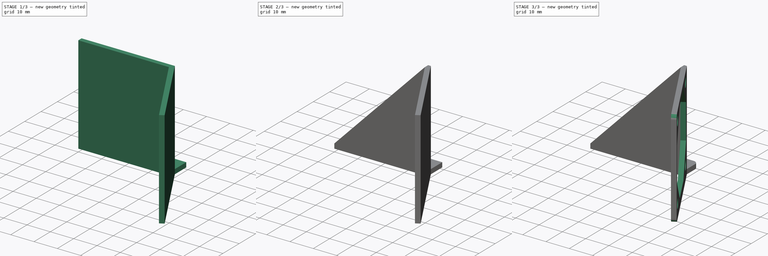
[diagram: build sequence overview — one tinted view per stage of 3, left to right]
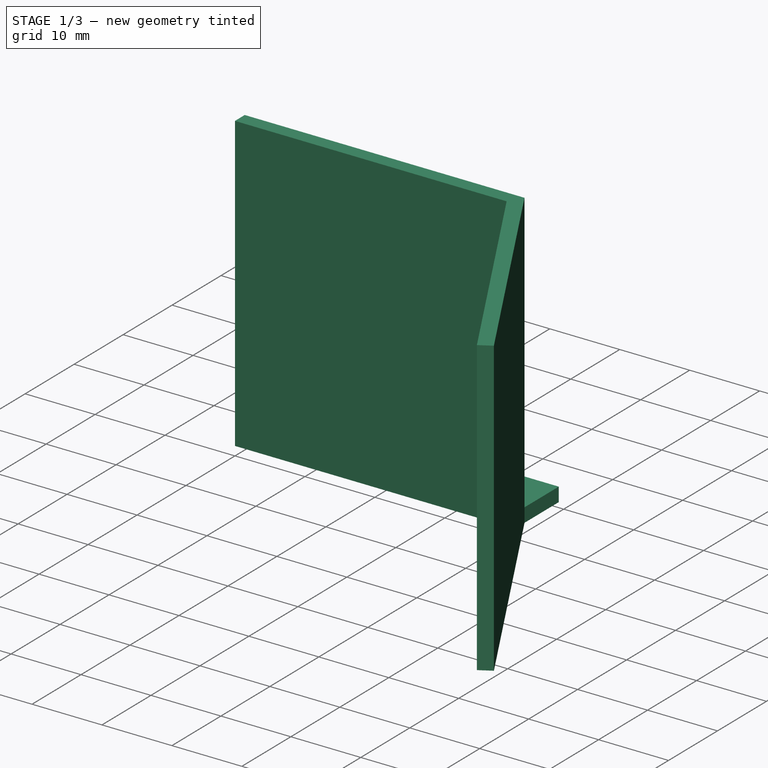
[diagram: stage 1 of 3 — iso view after this stage's code; geometry added in this stage tinted green]
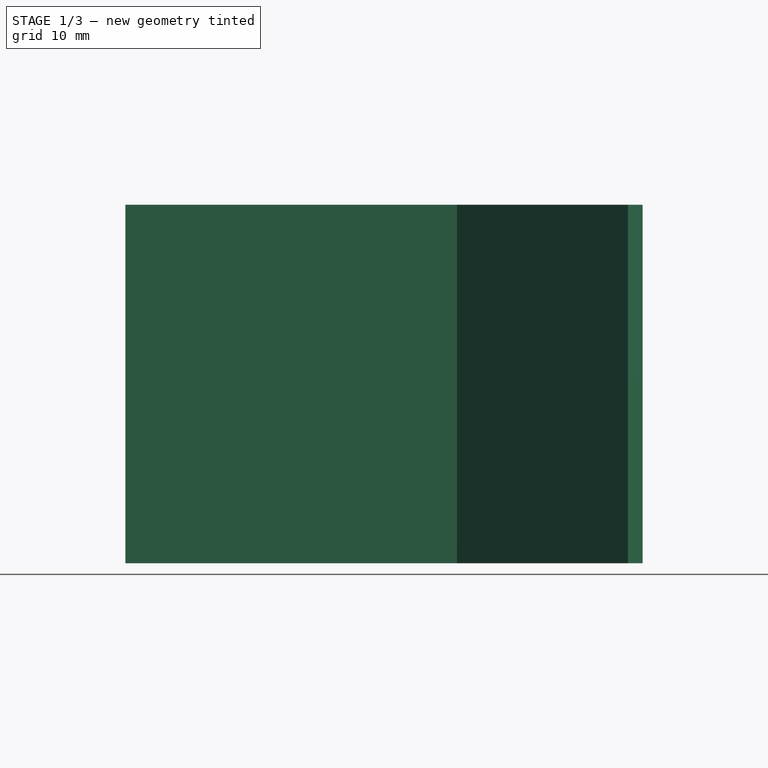
[diagram: stage 1 of 3 — front view after this stage's code; geometry added in this stage tinted green]
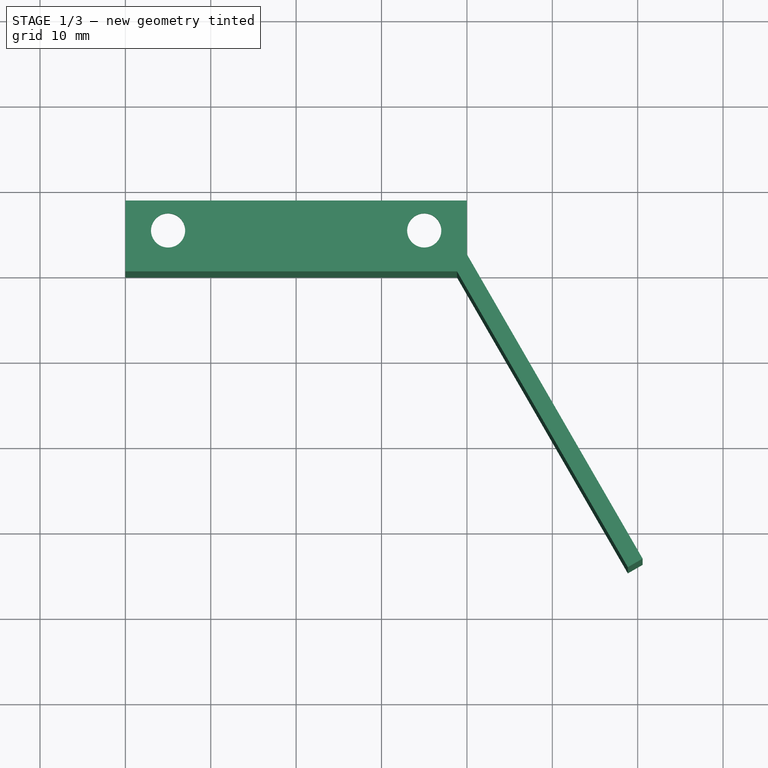
[diagram: stage 1 of 3 — top view after this stage's code; geometry added in this stage tinted green]
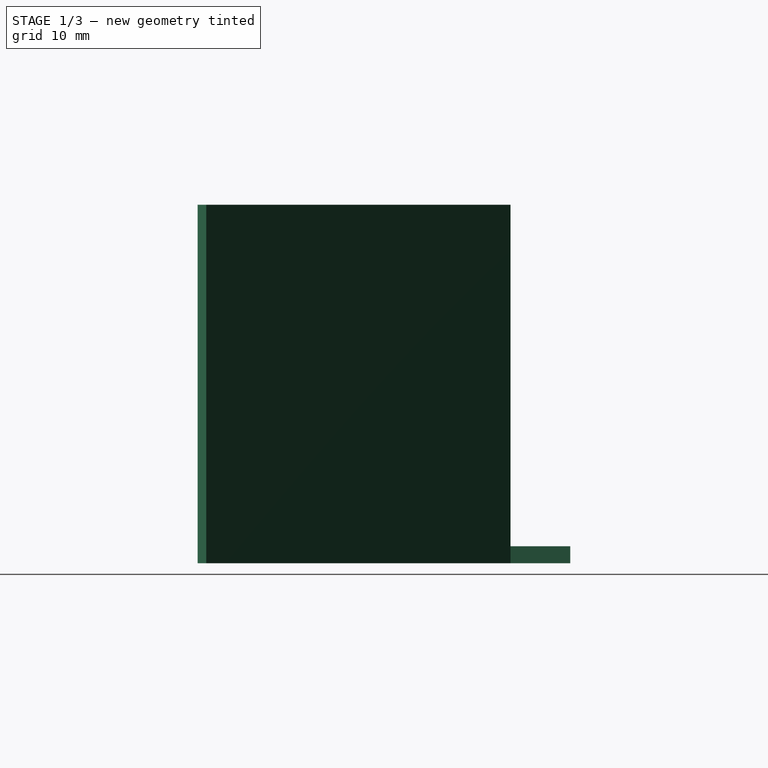
[diagram: stage 1 of 3 — right view after this stage's code; geometry added in this stage tinted green]
FCSTD DOCUMENT  (FreeCAD 0.18R14555 (Git shallow))
Label: fan-mount
License: All rights reserved
LicenseURL: http://en.wikipedia.org/wiki/All_rights_reserved
objects: Sketcher::SketchObject×4, PartDesign::Pocket×3, PartDesign::Pad×1, PartDesign::Fillet×1, PartDesign::Body×1
note: 14 computed .brp shape members not serialized (recipe doc carries the construction recipe); baked Part::Feature solids carry a one-line shape summary decoded from their .brp

FEATURE [Sketcher::SketchObject] Sketch
  MapMode = 5
  Support = -> [XY_Plane]
  sketch-geometry (14):
    g0: LineSegment StartX=0 StartY=0 StartZ=0 EndX=38.8453 EndY=0 EndZ=0
    g1: LineSegment StartX=40 StartY=9 StartZ=0 EndX=0 EndY=9 EndZ=0
    g2: LineSegment StartX=0 StartY=9 StartZ=0 EndX=0 EndY=0 EndZ=0
    g3: Circle CenterX=5 CenterY=5.5 CenterZ=0 NormalX=0 NormalY=0 NormalZ=1 AngleXU=0 Radius=2
    g4: Circle CenterX=35 CenterY=5.5 CenterZ=0 NormalX=0 NormalY=0 NormalZ=1 AngleXU=0 Radius=2
    g5: LineSegment [constr] StartX=5 StartY=5.5 StartZ=0 EndX=35 EndY=5.5 EndZ=0
    g6: LineSegment [constr] StartX=5 StartY=5.5 StartZ=0 EndX=0 EndY=9 EndZ=0
    g7: LineSegment [constr] StartX=35 StartY=5.5 StartZ=0 EndX=40 EndY=9 EndZ=0
    g8: LineSegment [constr] StartX=0 StartY=2 StartZ=0 EndX=40 EndY=2 EndZ=0
    g9: LineSegment [constr] StartX=0 StartY=2 StartZ=0 EndX=5 EndY=5.5 EndZ=0
    g10: LineSegment StartX=40 StartY=9 StartZ=0 EndX=40 EndY=2 EndZ=0
    g11: LineSegment StartX=40 StartY=2 StartZ=0 EndX=60.5774 EndY=-33.641 EndZ=0
    g12: LineSegment StartX=60.5774 StartY=-33.641 StartZ=0 EndX=58.8453 EndY=-34.641 EndZ=0
    g13: LineSegment StartX=58.8453 StartY=-34.641 StartZ=0 EndX=38.8453 EndY=0 EndZ=0
  constraints (37):
    c: Coincident(g1,g2)
    c: Coincident(g2,g0)
    c: Horizontal(g0)
    c: Horizontal(g1)
    c: Vertical(g2)
    c: Coincident(g0,g-1)
    c: DistanceY(g2,g2) = 9
    c: Coincident(g5,g3)
    c: Coincident(g5,g4)
    c: Horizontal(g5)
    c: Coincident(g6,g3)
    c: Coincident(g6,g1)
    c: Coincident(g7,g4)
    c: Equal(g6,g7)
    c: DistanceX(g5,g5) = 30
    c: DistanceX(g1,g1) = 40
    c: Horizontal(g8)
    c: PointOnObject(g8,g2)
    c: DistanceY(g0,g8) = 2
    c: Radius(g3) = 2
    c: Equal(g4,g3)
    c: Coincident(g9,g8)
    c: Coincident(g9,g3)
    c: Equal(g9,g6)
    c: Coincident(g10,g1)
    c: Coincident(g10,g8)
    c: Vertical(g10)
    c: Coincident(g10,g11)
    c: Coincident(g11,g12)
    c: Coincident(g12,g13)
    c: Coincident(g13,g0)
    c: Perpendicular(g13,g12)
    c: Parallel(g11,g13)
    c: Distance(g12) = 2
    c: Angle(g0,g13) = 2.0944
    c: Distance(g13) = 40
    c: Coincident(g7,g1)
FEATURE [PartDesign::Pad] Pad
  Length = 42
  Length2 = 100
  Profile = -> Sketch
  Type = 0
FEATURE [Sketcher::SketchObject] Sketch001
  ExternalGeometry = -> [Pad]
  MapMode = 5
  Placement = pos=(0,0,42) rot=(0,0,1;0rad)
  Support = -> [Pad]
  sketch-geometry (4):
    g0: LineSegment StartX=0 StartY=9 StartZ=0 EndX=40 EndY=9 EndZ=0
    g1: LineSegment StartX=40 StartY=9 StartZ=0 EndX=40 EndY=2 EndZ=0
    g2: LineSegment StartX=40 StartY=2 StartZ=0 EndX=0 EndY=2 EndZ=0
    g3: LineSegment StartX=0 StartY=2 StartZ=0 EndX=0 EndY=9 EndZ=0
  constraints (10):
    c: Coincident(g0,g1)
    c: Coincident(g1,g2)
    c: Coincident(g2,g3)
    c: Coincident(g3,g0)
    c: Horizontal(g2)
    c: Vertical(g1)
    c: Vertical(g3)
    c: Coincident(g0,g-3)
    c: Coincident(g0,g-3)
    c: DistanceY(g-1,g2) = 2
FEATURE [PartDesign::Pocket] Pocket
  BaseFeature = -> Pad
  Length = 40
  Length2 = 100
  Profile = -> Sketch001
  Type = 0
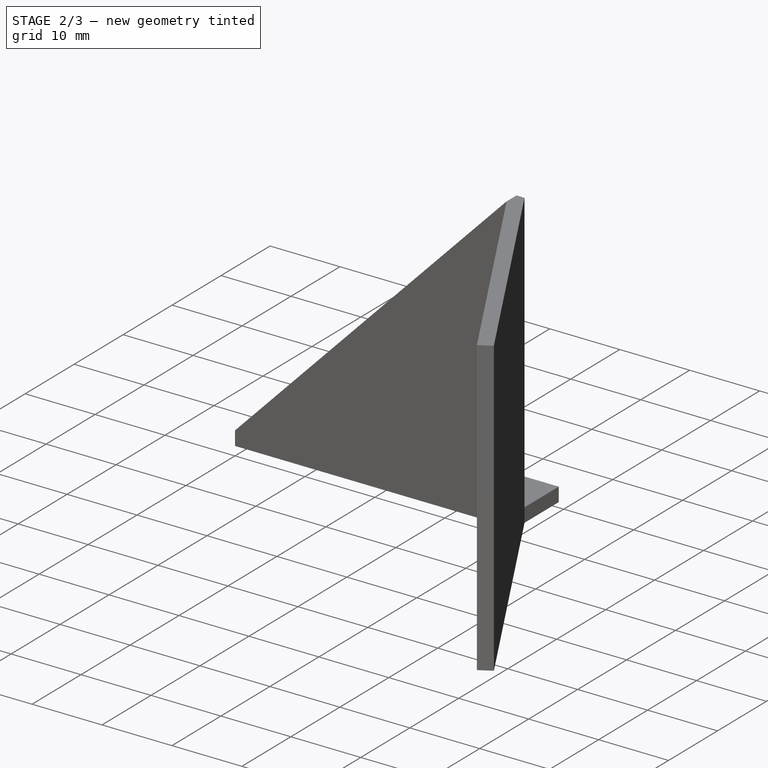
[diagram: stage 2 of 3 — iso view after this stage's code; geometry added in this stage tinted green]
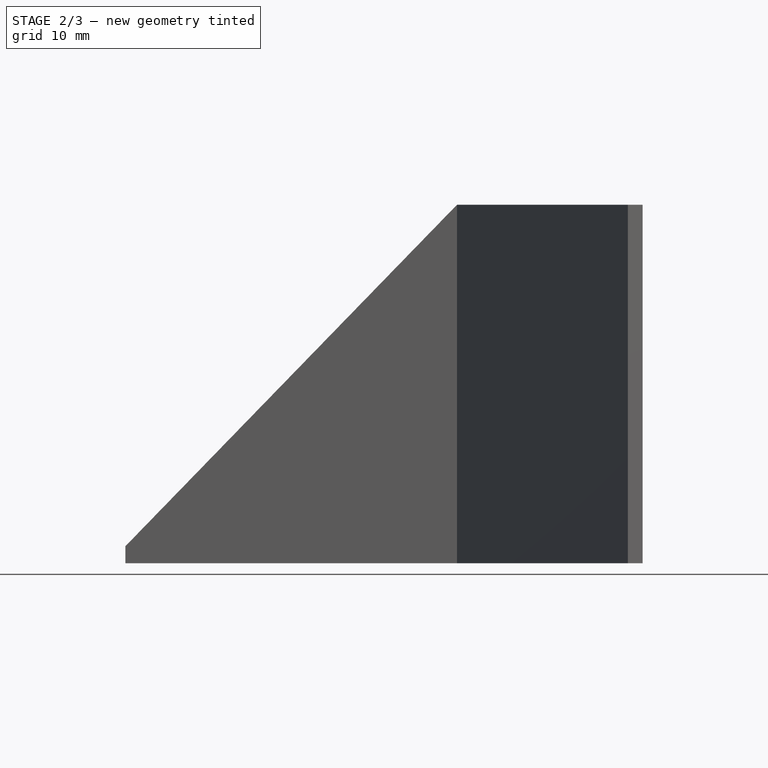
[diagram: stage 2 of 3 — front view after this stage's code; geometry added in this stage tinted green]
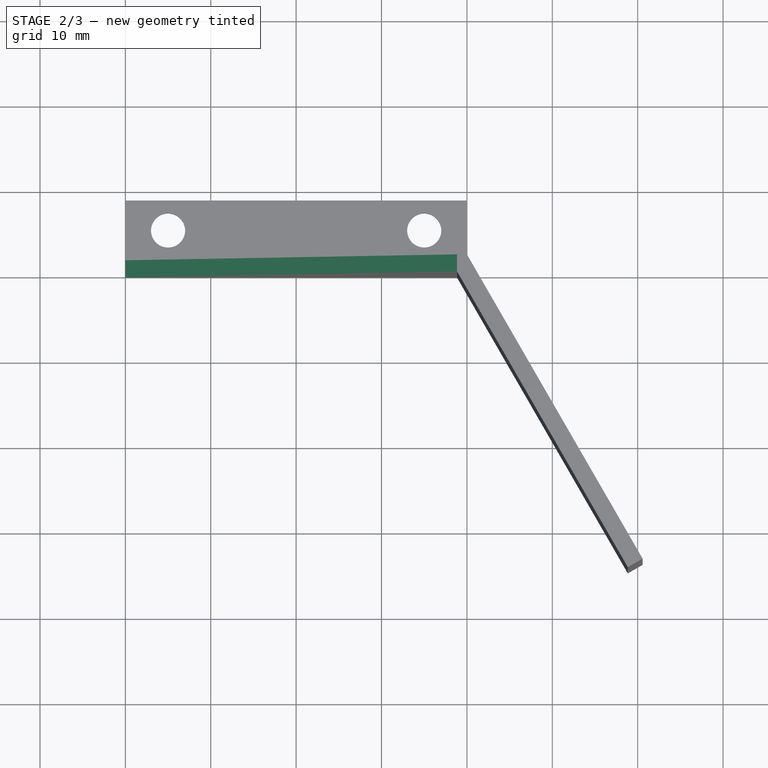
[diagram: stage 2 of 3 — top view after this stage's code; geometry added in this stage tinted green]
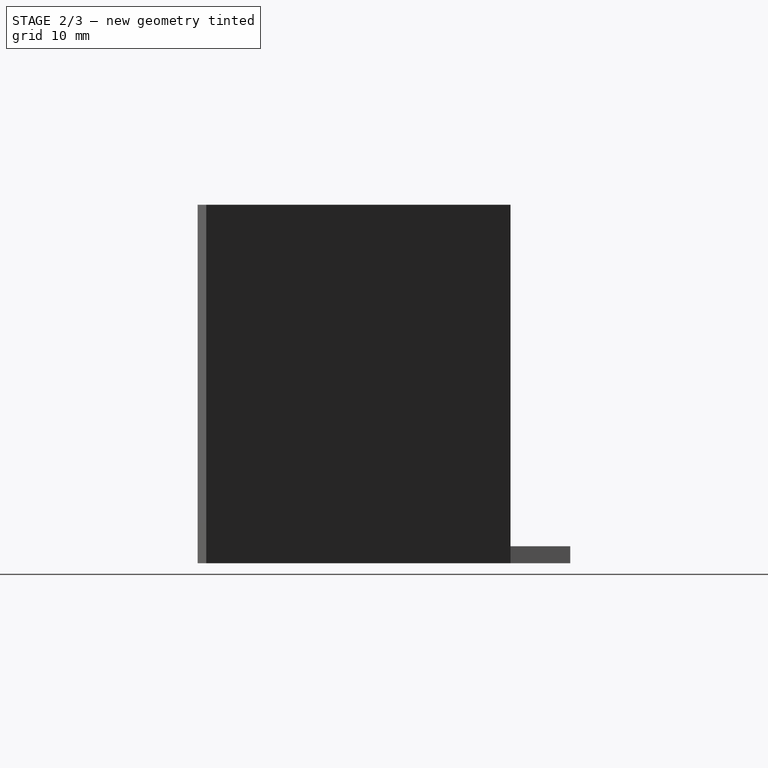
[diagram: stage 2 of 3 — right view after this stage's code; geometry added in this stage tinted green]
FEATURE [Sketcher::SketchObject] Sketch002
  ExternalGeometry = -> [Pocket]
  MapMode = 5
  Placement = pos=(0,0,0) rot=(1,0,0;1.5708rad)
  Support = -> [Pocket]
  sketch-geometry (3):
    g0: LineSegment StartX=0 StartY=2 StartZ=0 EndX=0 EndY=42 EndZ=0
    g1: LineSegment StartX=0 StartY=42 StartZ=0 EndX=38.8453 EndY=42 EndZ=0
    g2: LineSegment StartX=38.8453 StartY=42 StartZ=0 EndX=0 EndY=2 EndZ=0
  constraints (6):
    c: Coincident(g0,g1)
    c: Coincident(g1,g2)
    c: Coincident(g1,g-3)
    c: Coincident(g0,g-3)
    c: Coincident(g2,g0)
    c: Coincident(g0,g-4)
FEATURE [PartDesign::Pocket] Pocket001
  BaseFeature = -> Pocket
  Length = 5
  Length2 = 100
  Profile = -> Sketch002
  Type = 0
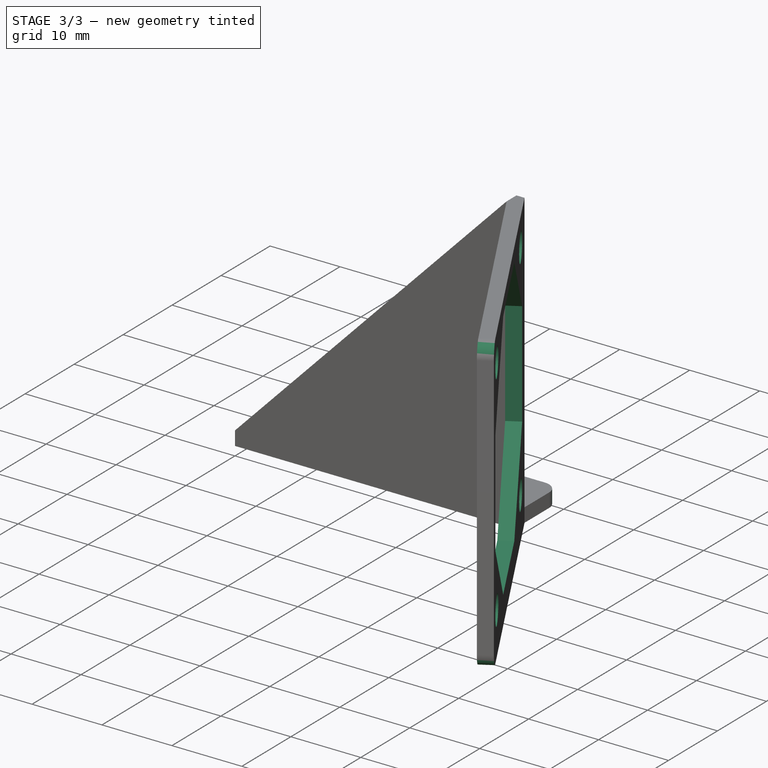
[diagram: stage 3 of 3 — iso view after this stage's code; geometry added in this stage tinted green]
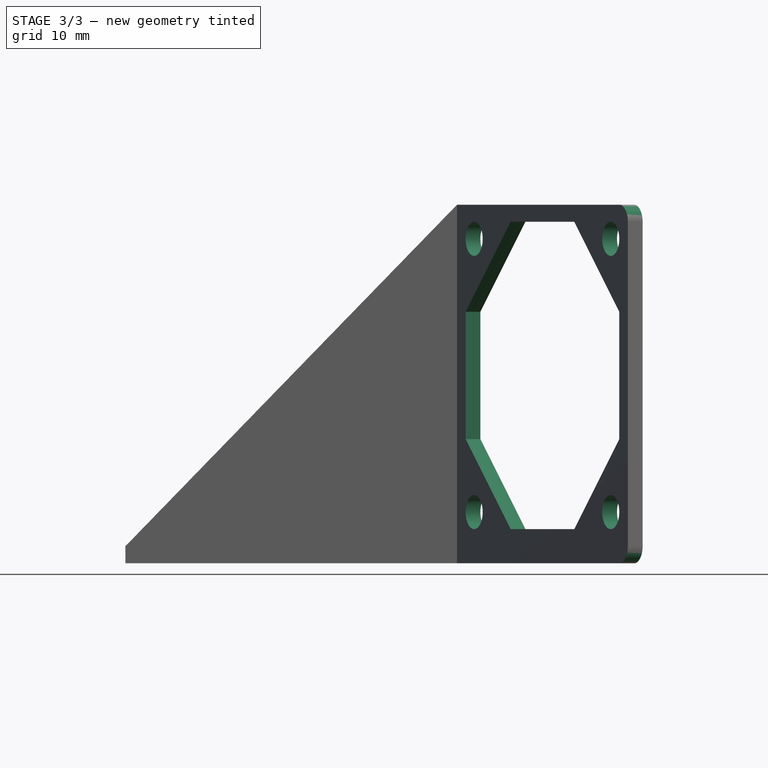
[diagram: stage 3 of 3 — front view after this stage's code; geometry added in this stage tinted green]
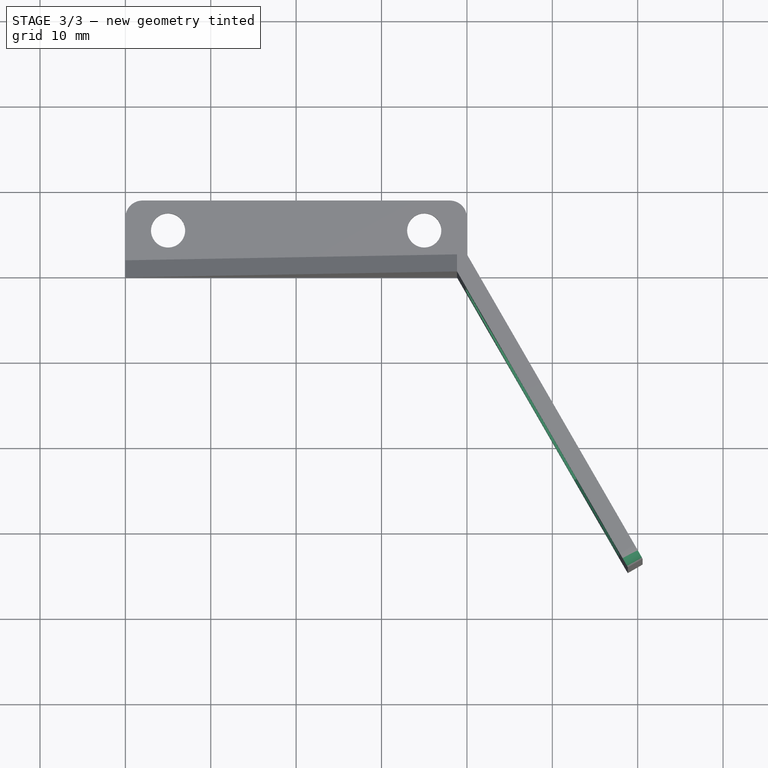
[diagram: stage 3 of 3 — top view after this stage's code; geometry added in this stage tinted green]
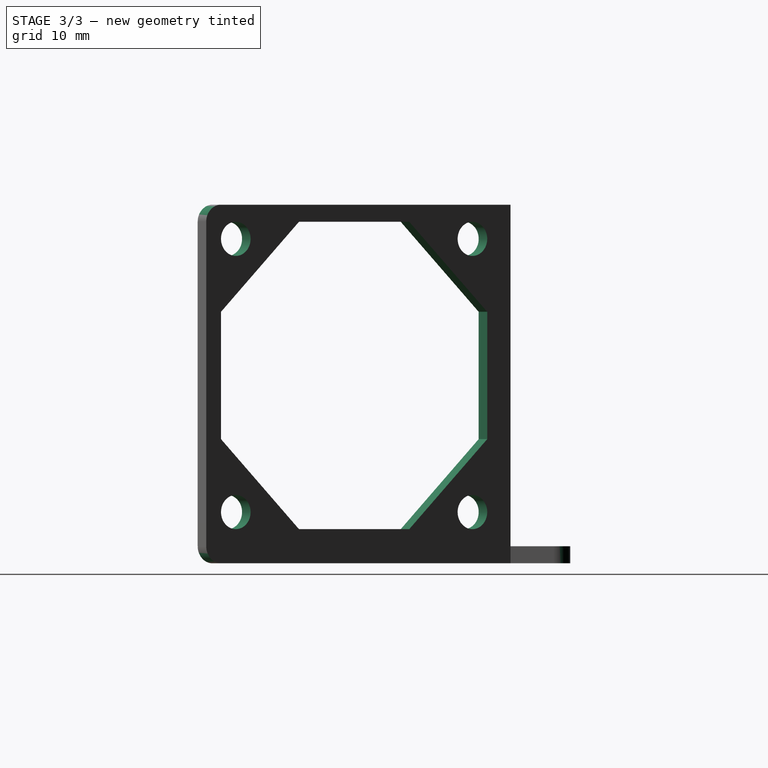
[diagram: stage 3 of 3 — right view after this stage's code; geometry added in this stage tinted green]
FEATURE [Sketcher::SketchObject] Sketch003
  ExternalGeometry = -> [Pocket001]
  MapMode = 5
  Placement = pos=(30.866,17.8205,0) rot=(0.377964,0.654654,0.654654;2.41886rad)
  Support = -> [Pocket001]
  sketch-geometry (23):
    g0: LineSegment [constr] StartX=-55.4226 StartY=38 StartZ=0 EndX=-23.4226 EndY=38 EndZ=0
    g1: LineSegment [constr] StartX=-23.4226 StartY=38 StartZ=0 EndX=-23.4226 EndY=6 EndZ=0
    g2: LineSegment [constr] StartX=-23.4226 StartY=6 StartZ=0 EndX=-55.4226 EndY=6 EndZ=0
    g3: LineSegment [constr] StartX=-55.4226 StartY=6 StartZ=0 EndX=-55.4226 EndY=38 EndZ=0
    g4: LineSegment [constr] StartX=-55.4226 StartY=38 StartZ=0 EndX=-59.4226 EndY=42 EndZ=0
    g5: LineSegment [constr] StartX=-23.4226 StartY=38 StartZ=0 EndX=-19.4226 EndY=42 EndZ=0
    g6: LineSegment [constr] StartX=-18.2679 StartY=2 StartZ=0 EndX=-19.4226 EndY=2 EndZ=0
    g7: LineSegment [constr] StartX=-23.4226 StartY=6 StartZ=0 EndX=-19.4226 EndY=2 EndZ=0
    g8: Circle CenterX=-55.4226 CenterY=38 CenterZ=0 NormalX=0 NormalY=0 NormalZ=1 AngleXU=0 Radius=2
    g9: Circle CenterX=-23.4226 CenterY=38 CenterZ=0 NormalX=0 NormalY=0 NormalZ=1 AngleXU=0 Radius=2
    g10: Circle CenterX=-23.4226 CenterY=6 CenterZ=0 NormalX=0 NormalY=0 NormalZ=1 AngleXU=0 Radius=2
    g11: Circle CenterX=-55.4226 CenterY=6 CenterZ=0 NormalX=0 NormalY=0 NormalZ=1 AngleXU=0 Radius=2
    g12: LineSegment StartX=-21.4226 StartY=29.4558 StartZ=0 EndX=-31.9668 EndY=40 EndZ=0
    g13: LineSegment StartX=-31.9668 StartY=40 StartZ=0 EndX=-46.8785 EndY=40 EndZ=0
    g14: LineSegment StartX=-46.8785 StartY=40 StartZ=0 EndX=-57.4226 EndY=29.4558 EndZ=0
    g15: LineSegment StartX=-57.4226 StartY=29.4558 StartZ=0 EndX=-57.4226 EndY=14.5442 EndZ=0
    g16: LineSegment StartX=-57.4226 StartY=14.5442 StartZ=0 EndX=-46.8785 EndY=4 EndZ=0
    g17: LineSegment StartX=-46.8785 StartY=4 StartZ=0 EndX=-31.9668 EndY=4 EndZ=0
    g18: LineSegment StartX=-31.9668 StartY=4 StartZ=0 EndX=-21.4226 EndY=14.5442 EndZ=0
    g19: LineSegment StartX=-21.4226 StartY=14.5442 StartZ=0 EndX=-21.4226 EndY=29.4558 EndZ=0
    g20: Circle [constr] CenterX=-39.4226 CenterY=22 CenterZ=0 NormalX=0 NormalY=0 NormalZ=1 AngleXU=0 Radius=19.4831
    g21: LineSegment [constr] StartX=-55.4226 StartY=38 StartZ=0 EndX=-23.4226 EndY=6 EndZ=0
    g22: LineSegment [constr] StartX=-55.4226 StartY=6 StartZ=0 EndX=-23.4226 EndY=38 EndZ=0
  constraints (54):
    c: Coincident(g0,g1)
    c: Coincident(g1,g2)
    c: Coincident(g2,g3)
    c: Coincident(g3,g0)
    c: Horizontal(g0)
    c: Horizontal(g2)
    c: Vertical(g1)
    c: Vertical(g3)
    c: Coincident(g4,g0)
    c: Coincident(g5,g0)
    c: Coincident(g5,g-3)
    c: Coincident(g6,g-5)
    c: PointOnObject(g6,g-3)
    c: Horizontal(g6)
    c: Coincident(g7,g1)
    c: Coincident(g7,g6)
    c: Equal(g5,g4)
    c: Equal(g4,g7)
    c: Equal(g0,g3)
    c: DistanceX(g0,g0) = 32
    c: Coincident(g4,g-4)
    c: Coincident(g8,g0)
    c: Coincident(g9,g0)
    c: Coincident(g10,g1)
    c: Coincident(g11,g2)
    c: Equal(g9,g8)
    c: Equal(g8,g11)
    c: Equal(g11,g10)
    c: Radius(g9) = 2
    c: Coincident(g12,g13)
    c: Coincident(g13,g14)
    c: Coincident(g14,g15)
    c: Coincident(g15,g16)
    c: Coincident(g16,g17)
    c: Coincident(g17,g18)
    c: Coincident(g18,g19)
    c: Coincident(g19,g12)
    c: Equal(g12, g13-g19) x7
    c: PointOnObject(g12,g20)
    c: PointOnObject(g13,g20)
    c: PointOnObject(g14,g20)
    c: PointOnObject(g15,g20)
    c: PointOnObject(g16,g20)
    c: PointOnObject(g17,g20)
    c: PointOnObject(g18,g20)
    c: PointOnObject(g19,g20)
    c: Coincident(g21,g8)
    c: Coincident(g21,g10)
    c: Coincident(g22,g11)
    c: Coincident(g22,g9)
    c: PointOnObject(g20,g21)
    c: PointOnObject(g20,g22)
    c: Vertical(g19)
    c: DistanceX(g4,g14) = 2
FEATURE [PartDesign::Pocket] Pocket002
  BaseFeature = -> Pocket001
  Length = 5
  Length2 = 100
  Profile = -> Sketch003
  Type = 0
FEATURE [PartDesign::Fillet] Fillet
  Base = -> Pocket002 [Edge39,Edge8,Edge4,Edge2]
  BaseFeature = -> Pocket002
  Radius = 2
FEATURE [PartDesign::Body] Body
  Group = -> [Sketch,Pad,Sketch001,Pocket,Sketch002,Pocket001,Sketch003,Pocket002,Fillet]
  Origin = -> Origin
  Tip = -> Fillet
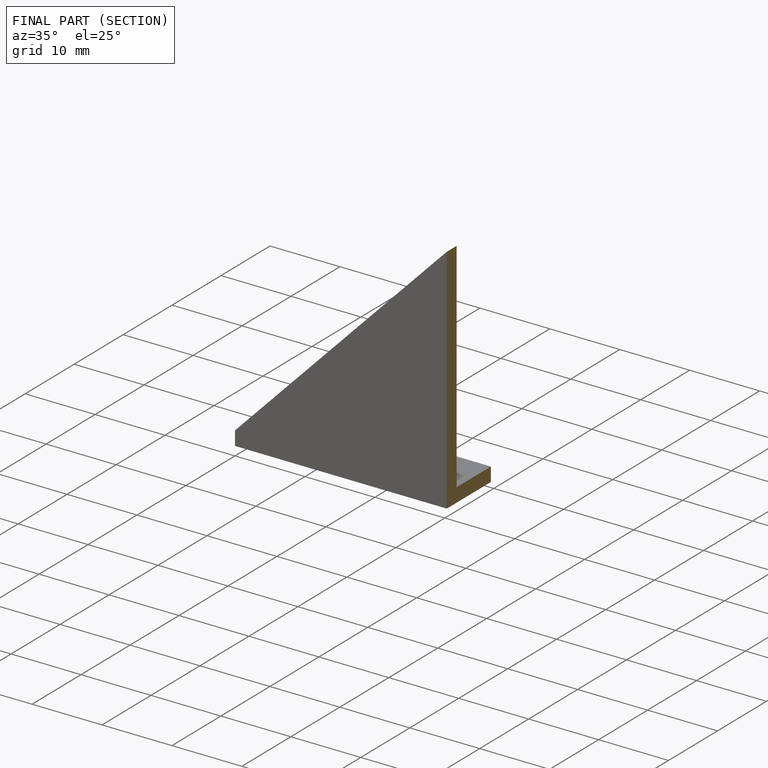
[diagram: finished part — half-section view (interior)]
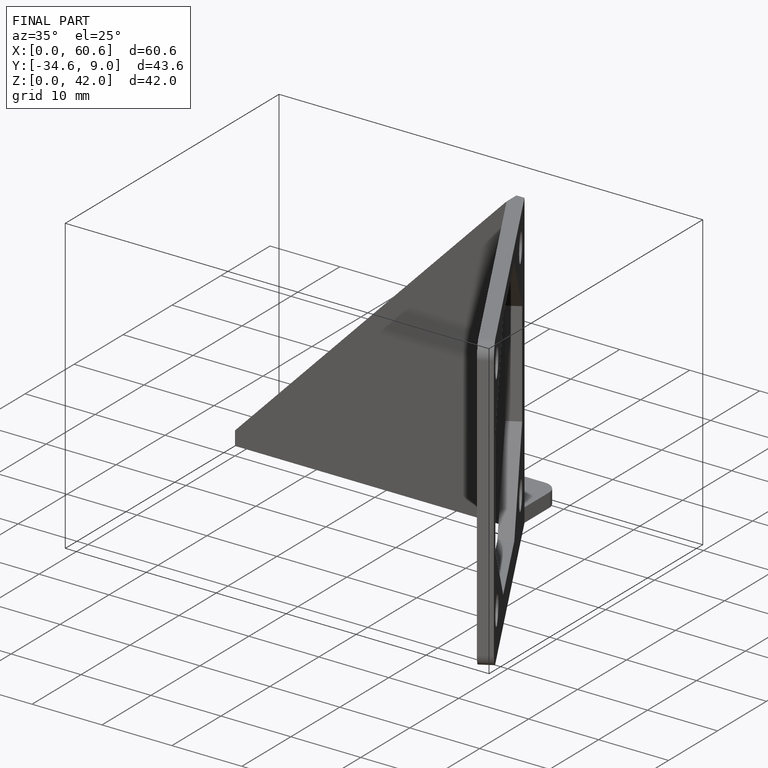
[diagram: finished part — iso view with bounding-box wireframe]
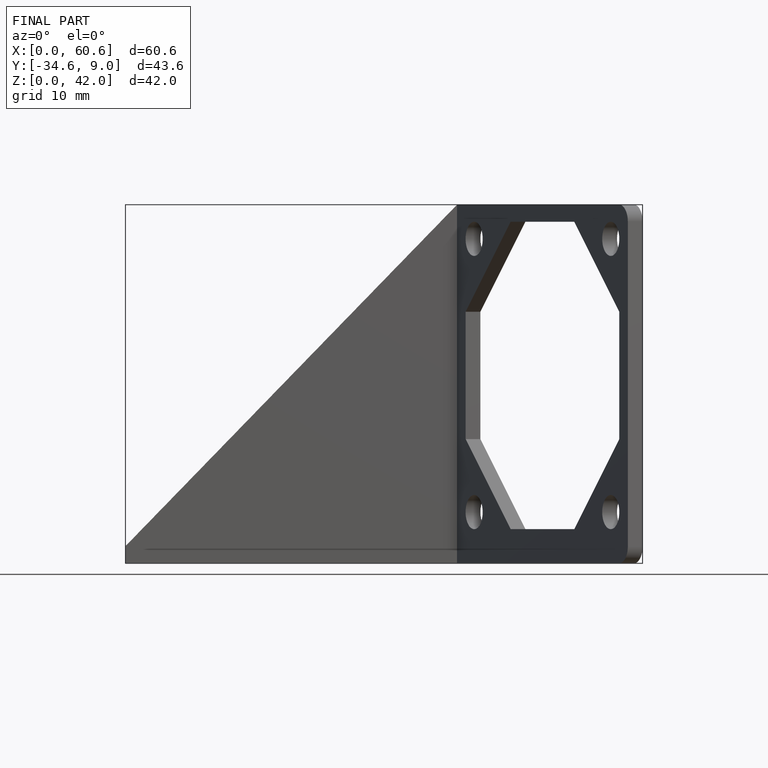
[diagram: finished part — front view with bounding-box wireframe]
